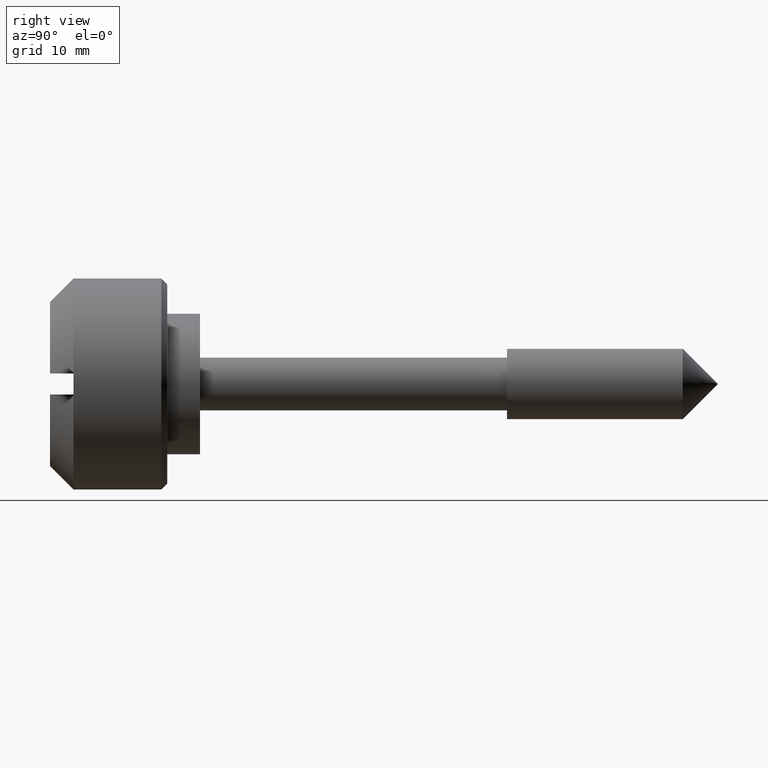
[diagram: clean part render]
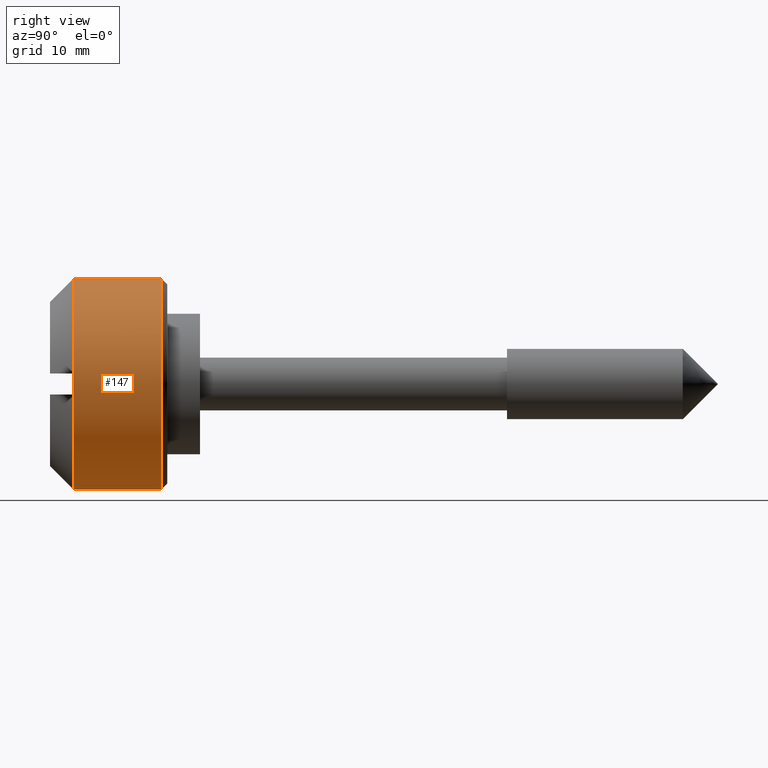
[diagram: same view with one face highlighted and labeled with its STEP entity id]
A machine part, right view. The second image highlights one B-rep face of the part: STEP entity #147.
In plain terms, the highlighted cylindrical surface (partial cylindrical patch) has radius 9 mm, axis along (0, -1, -0).
Its self-contained STEP definition (entity closure, byte-faithful):
#147=ADVANCED_FACE('',(#510),#509,.T.);
#509=CYLINDRICAL_SURFACE('',#774,9.00000000000E+00);
#510=FACE_OUTER_BOUND('',#775,.T.);
#771=CARTESIAN_POINT('',(-1.00200000000E+03,0.00000000000E+00,0.00000000000E+00));
#772=DIRECTION('',(-1.00000000000E+00,-0.00000000000E+00,-0.00000000000E+00));
#773=DIRECTION('',(-0.00000000000E+00,-0.00000000000E+00,1.00000000000E+00));
#774=AXIS2_PLACEMENT_3D('',#771,#772,#773);
#775=EDGE_LOOP('',(#996,#997,#998,#999));
#996=ORIENTED_EDGE('',*,*,#1113,.T.);
#997=ORIENTED_EDGE('',*,*,#1119,.T.);
#998=ORIENTED_EDGE('',*,*,#1121,.F.);
#999=ORIENTED_EDGE('',*,*,#1120,.F.);
#1113=EDGE_CURVE('',#1669,#1668,#1688,.T.);
#1119=EDGE_CURVE('',#1668,#1718,#1726,.T.);
#1120=EDGE_CURVE('',#1669,#1719,#1732,.T.);
#1121=EDGE_CURVE('',#1719,#1718,#1738,.T.);
#1668=VERTEX_POINT('',#2133);
#1669=VERTEX_POINT('',#2134);
#1688=CIRCLE('',#2146,9.00000000000E+00);
#1718=VERTEX_POINT('',#2155);
#1719=VERTEX_POINT('',#2156);
#1726=(BOUNDED_CURVE() B_SPLINE_CURVE(1,(#2161,#2162),.UNSPECIFIED.,.F.,.F.) B_SPLINE_CURVE_WITH_KNOTS((2,2),(8.33333320912E-02,9.16666667486E-01),.UNSPECIFIED.) CURVE() GEOMETRIC_REPRESENTATION_ITEM() RATIONAL_B_SPLINE_CURVE((1.00000000000E+00,1.00000000000E+00)) REPRESENTATION_ITEM('') );
#1732=(BOUNDED_CURVE() B_SPLINE_CURVE(1,(#2163,#2164),.UNSPECIFIED.,.F.,.F.) B_SPLINE_CURVE_WITH_KNOTS((2,2),(8.33333333333E-02,9.16666666667E-01),.UNSPECIFIED.) CURVE() GEOMETRIC_REPRESENTATION_ITEM() RATIONAL_B_SPLINE_CURVE((7.50000000000E-01,7.50000000000E-01)) REPRESENTATION_ITEM('') );
#1738=CIRCLE('',#2168,9.00000000000E+00);
#2133=CARTESIAN_POINT('',(-2.50000000000E+00,2.07241631263E-15,9.00000000000E+00));
#2134=CARTESIAN_POINT('',(-2.50000000000E+00,0.00000000000E+00,-9.00000000000E+00));
#2143=CARTESIAN_POINT('',(-2.50000000000E+00,0.00000000000E+00,0.00000000000E+00));
#2144=DIRECTION('',(-1.00000000000E+00,0.00000000000E+00,-0.00000000000E+00));
#2145=DIRECTION('',(0.00000000000E+00,-1.22460635382E-16,-1.00000000000E+00));
#2146=AXIS2_PLACEMENT_3D('',#2143,#2144,#2145);
#2155=CARTESIAN_POINT('',(-9.99990000000E+00,0.00000000000E+00,9.00000000000E+00));
#2156=CARTESIAN_POINT('',(-9.99990000000E+00,5.92118946467E-16,-9.00000000000E+00));
#2161=CARTESIAN_POINT('',(-2.49999998882E+00,0.00000000000E+00,9.00000000000E+00));
#2162=CARTESIAN_POINT('',(-9.99990000737E+00,0.00000000000E+00,9.00000000000E+00));
#2163=CARTESIAN_POINT('',(-2.50000000000E+00,-5.92118946467E-16,-9.00000000000E+00));
#2164=CARTESIAN_POINT('',(-9.99990000000E+00,-5.92118946467E-16,-9.00000000000E+00));
#2165=CARTESIAN_POINT('',(-9.99990000000E+00,0.00000000000E+00,0.00000000000E+00));
#2166=DIRECTION('',(-1.00000000000E+00,0.00000000000E+00,0.00000000000E+00));
#2167=DIRECTION('',(0.00000000000E+00,-1.22460635382E-16,1.00000000000E+00));
#2168=AXIS2_PLACEMENT_3D('',#2165,#2166,#2167);